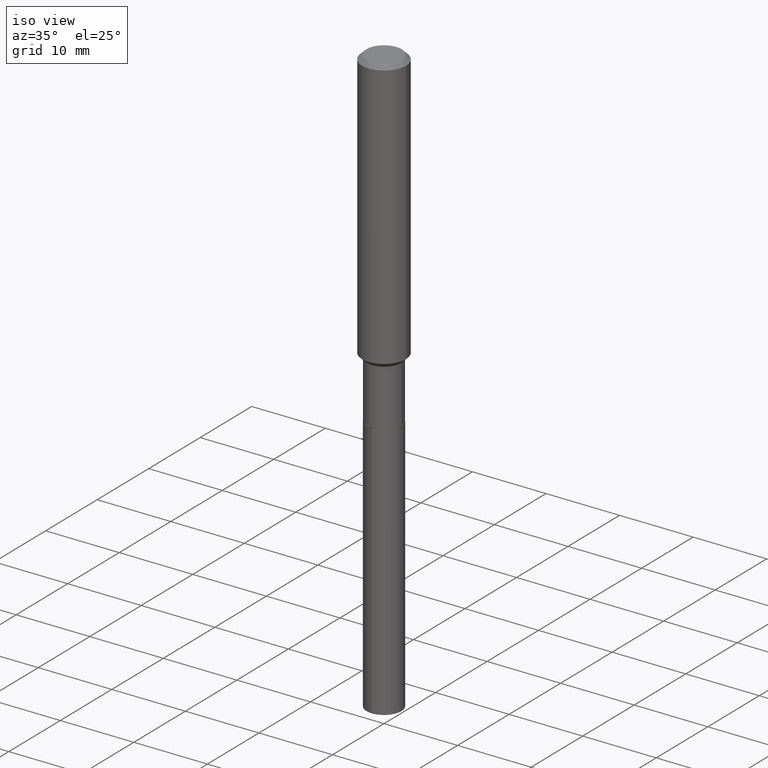
[diagram: clean part render]
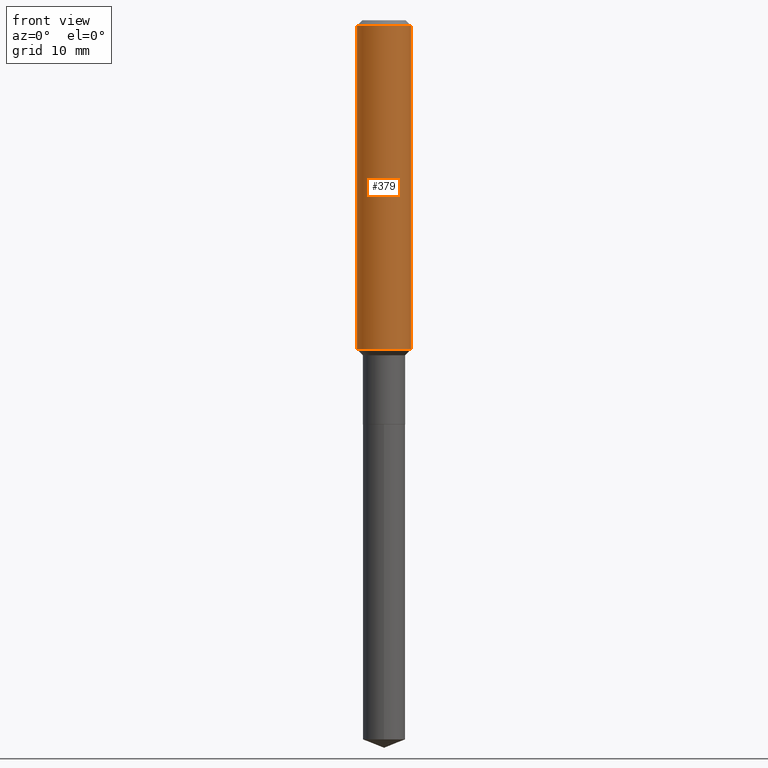
[diagram: tour spotlight — one face highlighted and labeled with its STEP entity id]
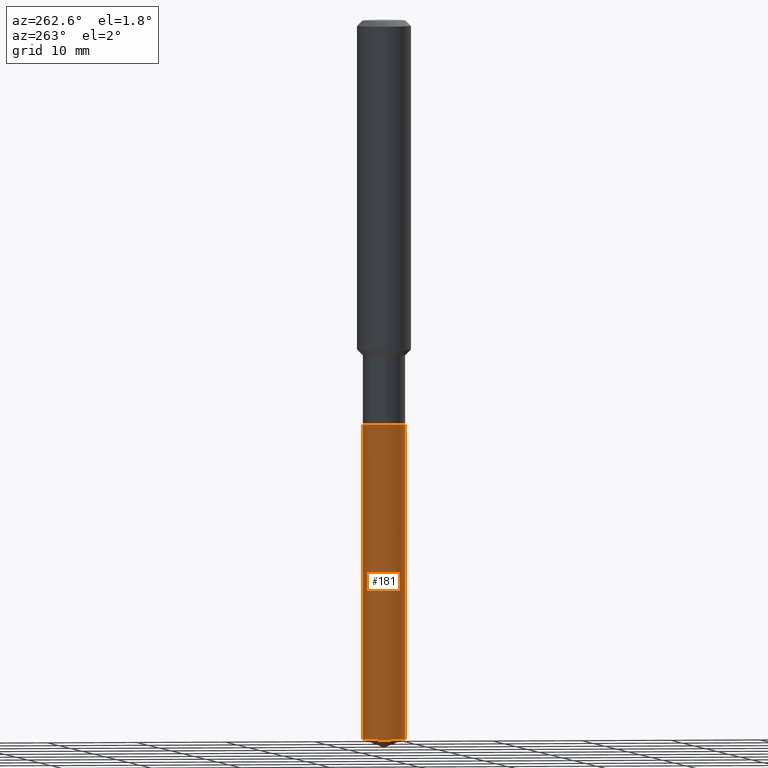
[diagram: tour spotlight — one face highlighted and labeled with its STEP entity id]
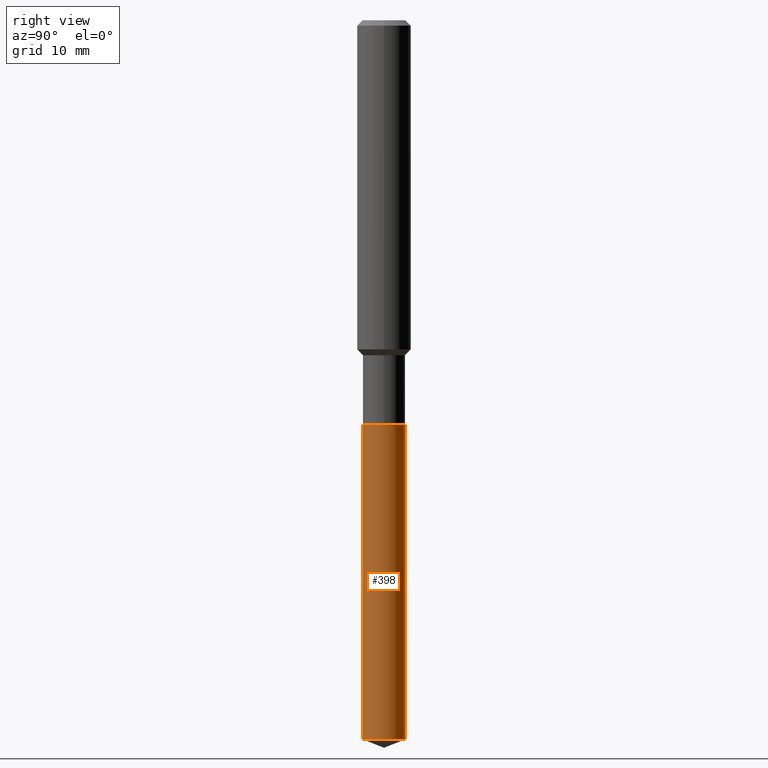
[diagram: tour spotlight — one face highlighted and labeled with its STEP entity id]
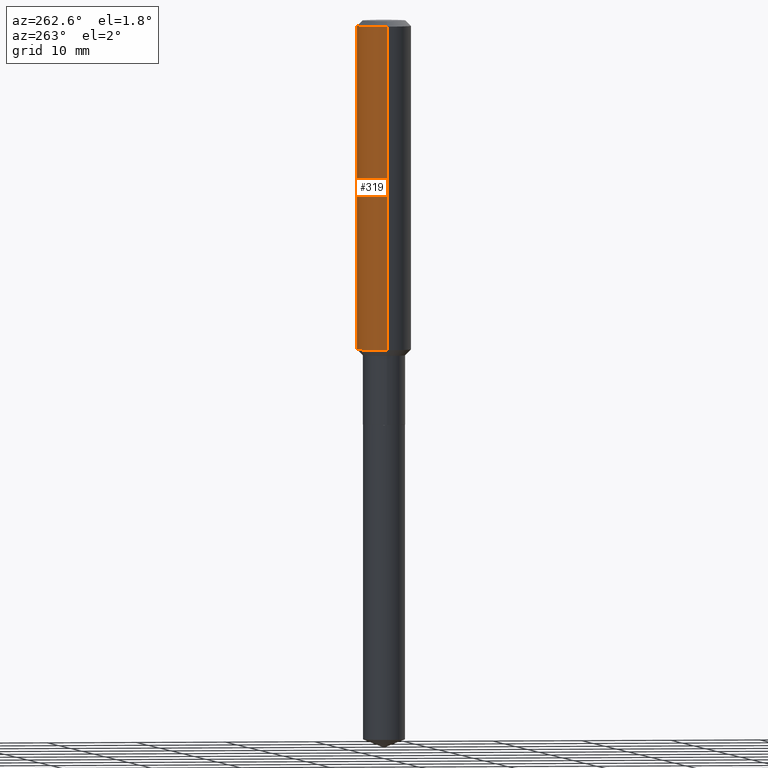
[diagram: tour spotlight — one face highlighted and labeled with its STEP entity id]
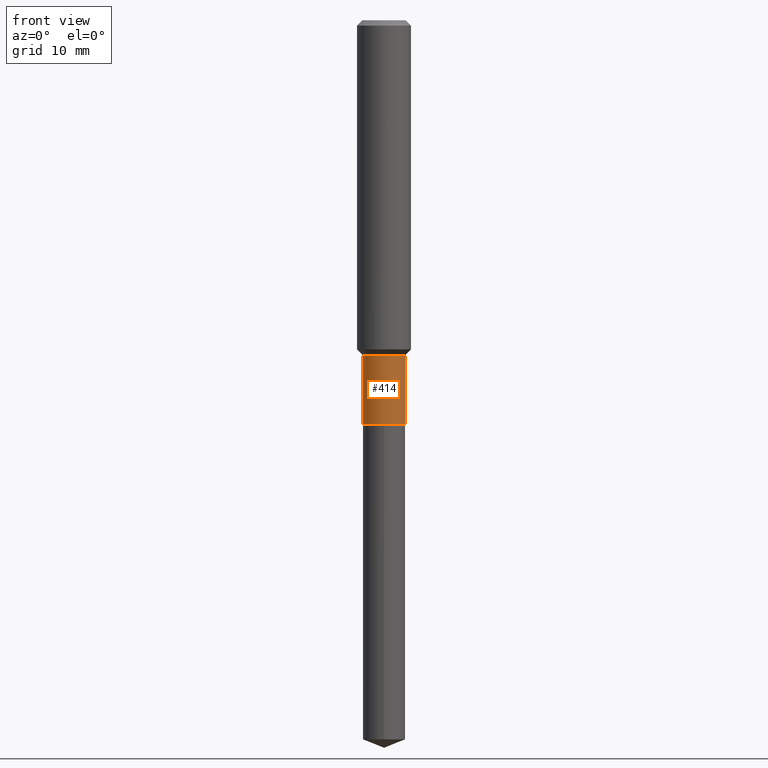
[diagram: tour spotlight — one face highlighted and labeled with its STEP entity id]
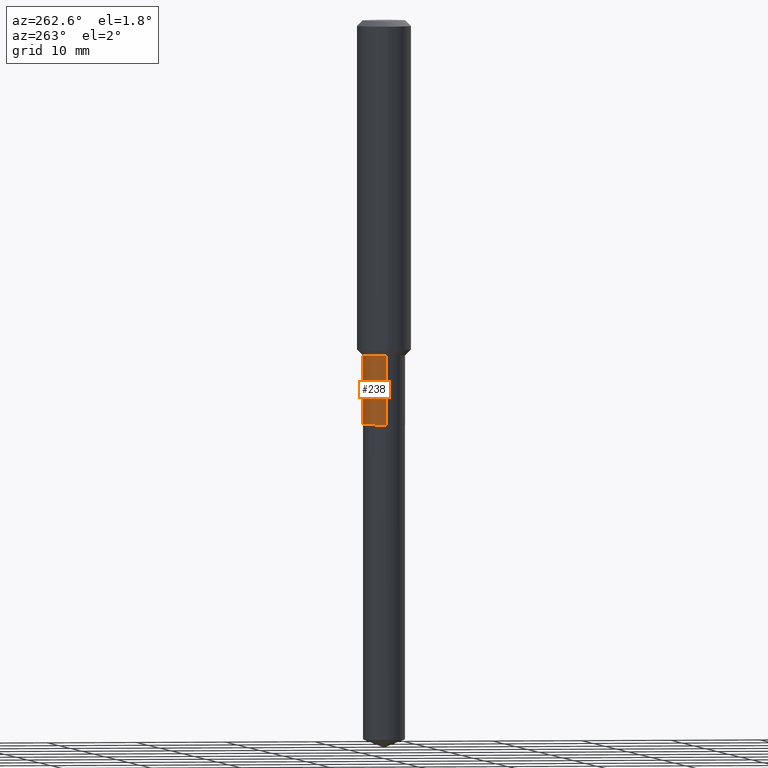
[diagram: tour spotlight — one face highlighted and labeled with its STEP entity id]
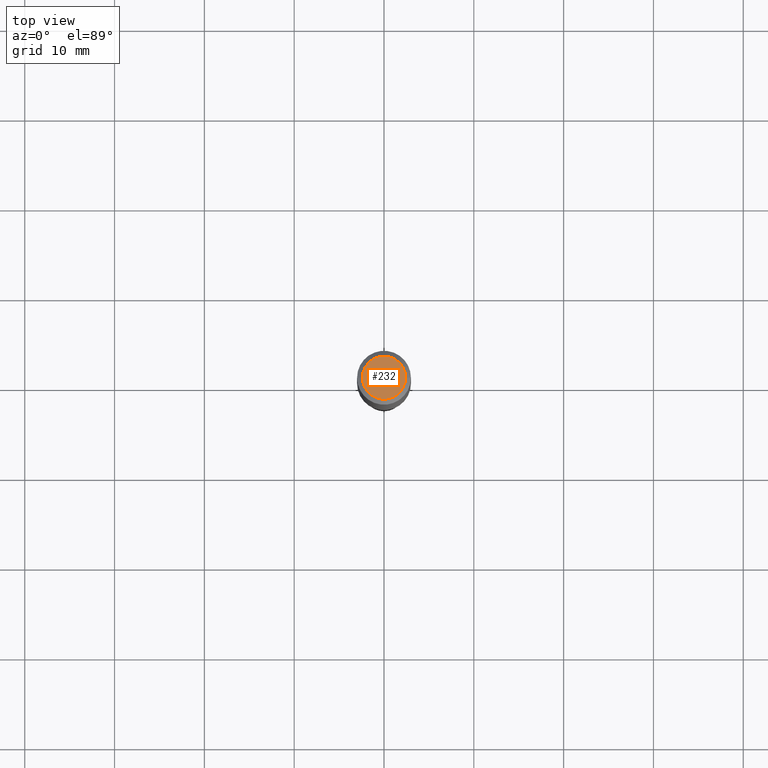
[diagram: tour spotlight — one face highlighted and labeled with its STEP entity id]
A machine part: a face-by-face anatomy tour. The part has 17 B-rep faces; the first image is the clean iso view, then the 7 largest visible faces are spotlighted one at a time (largest first), each with its STEP entity span.

Face 1 — front view, entity #379. In plain terms, the highlighted cylindrical surface (edge-blend (fillet) strip) has radius 2.9997 mm, axis along (-0, 0, 1).
Definition (entity closure, byte-faithful):
#12 = CIRCLE ( 'NONE', #258, 0.1181000000000001632 ) ;
#14 = EDGE_CURVE ( 'NONE', #247, #245, #276, .T. ) ;
#18 = CARTESIAN_POINT ( 'NONE',  ( 0.000000000000000000, 0.000000000000000000, 0.000000000000000000 ) ) ;
#19 = ORIENTED_EDGE ( 'NONE', *, *, #466, .F. ) ;
#29 = VECTOR ( 'NONE', #478, 39.37007874015748143 ) ;
#35 = EDGE_CURVE ( 'NONE', #395, #247, #12, .T. ) ;
#50 = EDGE_CURVE ( 'NONE', #395, #297, #104, .T. ) ;
#70 = CARTESIAN_POINT ( 'NONE',  ( -0.1181000000000000799, 8.391509709326788873E-16, -5.809262341591047988E-30 ) ) ;
#88 = ORIENTED_EDGE ( 'NONE', *, *, #50, .F. ) ;
#102 = DIRECTION ( 'NONE',  ( 1.000000000000000000, -6.982962677686263555E-15, 0.000000000000000000 ) ) ;
#104 = LINE ( 'NONE', #70, #164 ) ;
#121 = CYLINDRICAL_SURFACE ( 'NONE', #345, 0.1181000000000000799 ) ;
#159 = CARTESIAN_POINT ( 'NONE',  ( 0.1180999999999999966, -9.071566814582237199E-16, -0.02362000000000014088 ) ) ;
#162 = DIRECTION ( 'NONE',  ( -2.445468806185136597E-29, 3.491481338843145583E-15, 1.000000000000000000 ) ) ;
#163 = DIRECTION ( 'NONE',  ( -2.445468806185136877E-29, 3.491481338843145188E-15, 1.000000000000000000 ) ) ;
#164 = VECTOR ( 'NONE', #163, 39.37007874015748143 ) ;
#165 = ORIENTED_EDGE ( 'NONE', *, *, #14, .T. ) ;
#188 = CARTESIAN_POINT ( 'NONE',  ( -0.1181000000000001632, -4.198009156616327782E-15, -1.442700000000000538 ) ) ;
#192 = CARTESIAN_POINT ( 'NONE',  ( -0.1180999999999999966, -1.720663487453561930E-15, -0.02362000000000014088 ) ) ;
#204 = EDGE_LOOP ( 'NONE', ( #88, #310, #165, #19 ) ) ;
#227 = DIRECTION ( 'NONE',  ( 1.000000000000000000, -6.982962677686266711E-15, 4.876176775795936353E-29 ) ) ;
#245 = VERTEX_POINT ( 'NONE', #159 ) ;
#247 = VERTEX_POINT ( 'NONE', #423 ) ;
#258 = AXIS2_PLACEMENT_3D ( 'NONE', #282, #474, #102 ) ;
#270 = DIRECTION ( 'NONE',  ( -2.445468806185136597E-29, 3.491481338843145583E-15, 1.000000000000000000 ) ) ;
#276 = LINE ( 'NONE', #441, #29 ) ;
#282 = CARTESIAN_POINT ( 'NONE',  ( 3.528077846683297760E-29, -5.037160127549007557E-15, -1.442700000000000538 ) ) ;
#297 = VERTEX_POINT ( 'NONE', #192 ) ;
#310 = ORIENTED_EDGE ( 'NONE', *, *, #35, .T. ) ;
#345 = AXIS2_PLACEMENT_3D ( 'NONE', #18, #270, #227 ) ;
#353 = AXIS2_PLACEMENT_3D ( 'NONE', #436, #162, #476 ) ;
#378 = FACE_OUTER_BOUND ( 'NONE', #204, .T. ) ;
#379 = ADVANCED_FACE ( 'NONE', ( #378 ), #121, .T. ) ;
#395 = VERTEX_POINT ( 'NONE', #188 ) ;
#423 = CARTESIAN_POINT ( 'NONE',  ( 0.1181000000000001632, -5.861848019783756608E-15, -1.442700000000000538 ) ) ;
#436 = CARTESIAN_POINT ( 'NONE',  ( 5.776197320209327532E-31, -8.246878922347559293E-17, -0.02362000000000014088 ) ) ;
#441 = CARTESIAN_POINT ( 'NONE',  ( 0.1181000000000000799, -8.246878922347486570E-16, 5.758764772215004644E-30 ) ) ;
#466 = EDGE_CURVE ( 'NONE', #297, #245, #479, .T. ) ;
#474 = DIRECTION ( 'NONE',  ( -2.445468806185136597E-29, 3.491481338843145583E-15, 1.000000000000000000 ) ) ;
#476 = DIRECTION ( 'NONE',  ( 1.000000000000000000, -6.982962677686266711E-15, 0.000000000000000000 ) ) ;
#478 = DIRECTION ( 'NONE',  ( -2.445468806185136877E-29, 3.491481338843145188E-15, 1.000000000000000000 ) ) ;
#479 = CIRCLE ( 'NONE', #353, 0.1180999999999999966 ) ;

Face 2 — auxiliary view, entity #181. In plain terms, the highlighted cylindrical surface (edge-blend (fillet) strip) has radius 2.3495 mm, axis along (-0, 0, 1).
Definition (entity closure, byte-faithful):
#9 = VERTEX_POINT ( 'NONE', #168 ) ;
#26 = ORIENTED_EDGE ( 'NONE', *, *, #195, .F. ) ;
#30 = ORIENTED_EDGE ( 'NONE', *, *, #150, .T. ) ;
#34 = DIRECTION ( 'NONE',  ( -6.982962677686265922E-15, -1.000000000000000000, 2.953349182339743999E-15 ) ) ;
#49 = ORIENTED_EDGE ( 'NONE', *, *, #486, .F. ) ;
#90 = ORIENTED_EDGE ( 'NONE', *, *, #332, .T. ) ;
#91 = AXIS2_PLACEMENT_3D ( 'NONE', #483, #413, #490 ) ;
#107 = CARTESIAN_POINT ( 'NONE',  ( -6.459240476859363031E-16, -0.09250000000000618838, -1.771700000000000053 ) ) ;
#113 = DIRECTION ( 'NONE',  ( -2.445498752953222356E-29, 3.491438453366782686E-15, 1.000000000000000000 ) ) ;
#120 = VERTEX_POINT ( 'NONE', #107 ) ;
#145 = CARTESIAN_POINT ( 'NONE',  ( 7.709536515616339787E-29, -1.100705664617363653E-14, -3.152563281005618112 ) ) ;
#147 = CYLINDRICAL_SURFACE ( 'NONE', #387, 0.09249999999999999889 ) ;
#150 = EDGE_CURVE ( 'NONE', #342, #191, #220, .T. ) ;
#168 = CARTESIAN_POINT ( 'NONE',  ( 6.572520305781699724E-16, 0.09249999999999382327, -1.771700000000000719 ) ) ;
#171 = CIRCLE ( 'NONE', #91, 0.09249999999999999889 ) ;
#181 = ADVANCED_FACE ( 'NONE', ( #449 ), #147, .T. ) ;
#190 = LINE ( 'NONE', #268, #419 ) ;
#191 = VERTEX_POINT ( 'NONE', #371 ) ;
#195 = EDGE_CURVE ( 'NONE', #9, #120, #171, .T. ) ;
#220 = CIRCLE ( 'NONE', #446, 0.09249999999999999889 ) ;
#246 = CARTESIAN_POINT ( 'NONE',  ( 6.572520305781358542E-16, 0.09249999999999382327, -1.771700000000000719 ) ) ;
#250 = VECTOR ( 'NONE', #470, 39.37007874015748143 ) ;
#268 = CARTESIAN_POINT ( 'NONE',  ( -6.459240476859363031E-16, -0.09250000000000618838, -1.771700000000000053 ) ) ;
#323 = DIRECTION ( 'NONE',  ( -2.445498752953222356E-29, 3.491438453366782686E-15, 1.000000000000000000 ) ) ;
#332 = EDGE_CURVE ( 'NONE', #191, #120, #190, .T. ) ;
#342 = VERTEX_POINT ( 'NONE', #375 ) ;
#371 = CARTESIAN_POINT ( 'NONE',  ( -6.459240476859022835E-16, -0.09250000000001096234, -3.152563281005617224 ) ) ;
#375 = CARTESIAN_POINT ( 'NONE',  ( 6.572520305781693808E-16, 0.09249999999998897993, -3.152563281005618556 ) ) ;
#380 = EDGE_LOOP ( 'NONE', ( #49, #30, #90, #26 ) ) ;
#387 = AXIS2_PLACEMENT_3D ( 'NONE', #457, #113, #34 ) ;
#396 = LINE ( 'NONE', #246, #250 ) ;
#405 = DIRECTION ( 'NONE',  ( -6.982962677686265922E-15, -1.000000000000000000, 5.906698364679487997E-15 ) ) ;
#413 = DIRECTION ( 'NONE',  ( -2.445498752953222356E-29, 3.491438453366782686E-15, 1.000000000000000000 ) ) ;
#419 = VECTOR ( 'NONE', #459, 39.37007874015748143 ) ;
#446 = AXIS2_PLACEMENT_3D ( 'NONE', #145, #323, #405 ) ;
#449 = FACE_OUTER_BOUND ( 'NONE', #380, .T. ) ;
#457 = CARTESIAN_POINT ( 'NONE',  ( 4.332637083918206987E-29, -6.185857488028401870E-15, -1.771700000000000497 ) ) ;
#459 = DIRECTION ( 'NONE',  ( -2.445498752953222356E-29, 3.491438453366782686E-15, 1.000000000000000000 ) ) ;
#470 = DIRECTION ( 'NONE',  ( -2.445498752953222356E-29, 3.491438453366782686E-15, 1.000000000000000000 ) ) ;
#483 = CARTESIAN_POINT ( 'NONE',  ( 4.332637083918206987E-29, -6.185857488028401870E-15, -1.771700000000000497 ) ) ;
#486 = EDGE_CURVE ( 'NONE', #342, #9, #396, .T. ) ;
#490 = DIRECTION ( 'NONE',  ( -6.982962677686265922E-15, -1.000000000000000000, 2.953349182339743999E-15 ) ) ;

Face 3 — right view, entity #398. In plain terms, the highlighted cylindrical surface (edge-blend (fillet) strip) has radius 2.3495 mm, axis along (-0, 0, 1).
Definition (entity closure, byte-faithful):
#8 = CYLINDRICAL_SURFACE ( 'NONE', #447, 0.09249999999999999889 ) ;
#9 = VERTEX_POINT ( 'NONE', #168 ) ;
#23 = AXIS2_PLACEMENT_3D ( 'NONE', #299, #149, #186 ) ;
#32 = CARTESIAN_POINT ( 'NONE',  ( 4.332637083918206987E-29, -6.185857488028401870E-15, -1.771700000000000497 ) ) ;
#37 = DIRECTION ( 'NONE',  ( -6.982962677686265922E-15, -1.000000000000000000, 2.953349182339743999E-15 ) ) ;
#43 = DIRECTION ( 'NONE',  ( -6.982962677686265922E-15, -1.000000000000000000, 2.953349182339743999E-15 ) ) ;
#61 = CIRCLE ( 'NONE', #409, 0.09249999999999999889 ) ;
#71 = EDGE_CURVE ( 'NONE', #120, #9, #61, .T. ) ;
#107 = CARTESIAN_POINT ( 'NONE',  ( -6.459240476859363031E-16, -0.09250000000000618838, -1.771700000000000053 ) ) ;
#120 = VERTEX_POINT ( 'NONE', #107 ) ;
#122 = CARTESIAN_POINT ( 'NONE',  ( 4.332637083918206987E-29, -6.185857488028401870E-15, -1.771700000000000497 ) ) ;
#149 = DIRECTION ( 'NONE',  ( -2.445498752953222356E-29, 3.491438453366782686E-15, 1.000000000000000000 ) ) ;
#168 = CARTESIAN_POINT ( 'NONE',  ( 6.572520305781699724E-16, 0.09249999999999382327, -1.771700000000000719 ) ) ;
#185 = CIRCLE ( 'NONE', #23, 0.09249999999999999889 ) ;
#186 = DIRECTION ( 'NONE',  ( -6.982962677686265922E-15, -1.000000000000000000, 5.906698364679487997E-15 ) ) ;
#190 = LINE ( 'NONE', #268, #419 ) ;
#191 = VERTEX_POINT ( 'NONE', #371 ) ;
#193 = ORIENTED_EDGE ( 'NONE', *, *, #253, .T. ) ;
#242 = EDGE_LOOP ( 'NONE', ( #193, #390, #425, #393 ) ) ;
#246 = CARTESIAN_POINT ( 'NONE',  ( 6.572520305781358542E-16, 0.09249999999999382327, -1.771700000000000719 ) ) ;
#250 = VECTOR ( 'NONE', #470, 39.37007874015748143 ) ;
#253 = EDGE_CURVE ( 'NONE', #191, #342, #185, .T. ) ;
#268 = CARTESIAN_POINT ( 'NONE',  ( -6.459240476859363031E-16, -0.09250000000000618838, -1.771700000000000053 ) ) ;
#299 = CARTESIAN_POINT ( 'NONE',  ( 7.709536515616339787E-29, -1.100705664617363653E-14, -3.152563281005618112 ) ) ;
#332 = EDGE_CURVE ( 'NONE', #191, #120, #190, .T. ) ;
#342 = VERTEX_POINT ( 'NONE', #375 ) ;
#371 = CARTESIAN_POINT ( 'NONE',  ( -6.459240476859022835E-16, -0.09250000000001096234, -3.152563281005617224 ) ) ;
#375 = CARTESIAN_POINT ( 'NONE',  ( 6.572520305781693808E-16, 0.09249999999998897993, -3.152563281005618556 ) ) ;
#388 = FACE_OUTER_BOUND ( 'NONE', #242, .T. ) ;
#390 = ORIENTED_EDGE ( 'NONE', *, *, #486, .T. ) ;
#393 = ORIENTED_EDGE ( 'NONE', *, *, #332, .F. ) ;
#396 = LINE ( 'NONE', #246, #250 ) ;
#398 = ADVANCED_FACE ( 'NONE', ( #388 ), #8, .T. ) ;
#409 = AXIS2_PLACEMENT_3D ( 'NONE', #32, #412, #37 ) ;
#412 = DIRECTION ( 'NONE',  ( -2.445498752953222356E-29, 3.491438453366782686E-15, 1.000000000000000000 ) ) ;
#419 = VECTOR ( 'NONE', #459, 39.37007874015748143 ) ;
#425 = ORIENTED_EDGE ( 'NONE', *, *, #71, .F. ) ;
#428 = DIRECTION ( 'NONE',  ( -2.445498752953222356E-29, 3.491438453366782686E-15, 1.000000000000000000 ) ) ;
#447 = AXIS2_PLACEMENT_3D ( 'NONE', #122, #428, #43 ) ;
#459 = DIRECTION ( 'NONE',  ( -2.445498752953222356E-29, 3.491438453366782686E-15, 1.000000000000000000 ) ) ;
#470 = DIRECTION ( 'NONE',  ( -2.445498752953222356E-29, 3.491438453366782686E-15, 1.000000000000000000 ) ) ;
#486 = EDGE_CURVE ( 'NONE', #342, #9, #396, .T. ) ;

Face 4 — auxiliary view, entity #319. In plain terms, the highlighted cylindrical surface (edge-blend (fillet) strip) has radius 2.9997 mm, axis along (-0, 0, 1).
Definition (entity closure, byte-faithful):
#14 = EDGE_CURVE ( 'NONE', #247, #245, #276, .T. ) ;
#29 = VECTOR ( 'NONE', #478, 39.37007874015748143 ) ;
#50 = EDGE_CURVE ( 'NONE', #395, #297, #104, .T. ) ;
#54 = CYLINDRICAL_SURFACE ( 'NONE', #77, 0.1181000000000000799 ) ;
#70 = CARTESIAN_POINT ( 'NONE',  ( -0.1181000000000000799, 8.391509709326788873E-16, -5.809262341591047988E-30 ) ) ;
#72 = DIRECTION ( 'NONE',  ( 1.000000000000000000, -6.982962677686266711E-15, 0.000000000000000000 ) ) ;
#77 = AXIS2_PLACEMENT_3D ( 'NONE', #309, #458, #119 ) ;
#78 = EDGE_CURVE ( 'NONE', #245, #297, #155, .T. ) ;
#79 = DIRECTION ( 'NONE',  ( -2.445468806185136597E-29, 3.491481338843145583E-15, 1.000000000000000000 ) ) ;
#104 = LINE ( 'NONE', #70, #164 ) ;
#119 = DIRECTION ( 'NONE',  ( 1.000000000000000000, -6.982962677686266711E-15, 4.876176775795936353E-29 ) ) ;
#132 = AXIS2_PLACEMENT_3D ( 'NONE', #177, #180, #72 ) ;
#155 = CIRCLE ( 'NONE', #132, 0.1180999999999999966 ) ;
#159 = CARTESIAN_POINT ( 'NONE',  ( 0.1180999999999999966, -9.071566814582237199E-16, -0.02362000000000014088 ) ) ;
#163 = DIRECTION ( 'NONE',  ( -2.445468806185136877E-29, 3.491481338843145188E-15, 1.000000000000000000 ) ) ;
#164 = VECTOR ( 'NONE', #163, 39.37007874015748143 ) ;
#177 = CARTESIAN_POINT ( 'NONE',  ( 5.776197320209327532E-31, -8.246878922347559293E-17, -0.02362000000000014088 ) ) ;
#180 = DIRECTION ( 'NONE',  ( -2.445468806185136597E-29, 3.491481338843145583E-15, 1.000000000000000000 ) ) ;
#187 = EDGE_CURVE ( 'NONE', #247, #395, #226, .T. ) ;
#188 = CARTESIAN_POINT ( 'NONE',  ( -0.1181000000000001632, -4.198009156616327782E-15, -1.442700000000000538 ) ) ;
#192 = CARTESIAN_POINT ( 'NONE',  ( -0.1180999999999999966, -1.720663487453561930E-15, -0.02362000000000014088 ) ) ;
#198 = ORIENTED_EDGE ( 'NONE', *, *, #50, .T. ) ;
#226 = CIRCLE ( 'NONE', #386, 0.1181000000000001632 ) ;
#245 = VERTEX_POINT ( 'NONE', #159 ) ;
#247 = VERTEX_POINT ( 'NONE', #423 ) ;
#263 = DIRECTION ( 'NONE',  ( 1.000000000000000000, -6.982962677686263555E-15, 0.000000000000000000 ) ) ;
#269 = EDGE_LOOP ( 'NONE', ( #279, #198, #460, #320 ) ) ;
#276 = LINE ( 'NONE', #441, #29 ) ;
#279 = ORIENTED_EDGE ( 'NONE', *, *, #187, .T. ) ;
#297 = VERTEX_POINT ( 'NONE', #192 ) ;
#309 = CARTESIAN_POINT ( 'NONE',  ( 0.000000000000000000, 0.000000000000000000, 0.000000000000000000 ) ) ;
#319 = ADVANCED_FACE ( 'NONE', ( #416 ), #54, .T. ) ;
#320 = ORIENTED_EDGE ( 'NONE', *, *, #14, .F. ) ;
#386 = AXIS2_PLACEMENT_3D ( 'NONE', #451, #79, #263 ) ;
#395 = VERTEX_POINT ( 'NONE', #188 ) ;
#416 = FACE_OUTER_BOUND ( 'NONE', #269, .T. ) ;
#423 = CARTESIAN_POINT ( 'NONE',  ( 0.1181000000000001632, -5.861848019783756608E-15, -1.442700000000000538 ) ) ;
#441 = CARTESIAN_POINT ( 'NONE',  ( 0.1181000000000000799, -8.246878922347486570E-16, 5.758764772215004644E-30 ) ) ;
#451 = CARTESIAN_POINT ( 'NONE',  ( 3.528077846683297760E-29, -5.037160127549007557E-15, -1.442700000000000538 ) ) ;
#458 = DIRECTION ( 'NONE',  ( -2.445468806185136597E-29, 3.491481338843145583E-15, 1.000000000000000000 ) ) ;
#460 = ORIENTED_EDGE ( 'NONE', *, *, #78, .F. ) ;
#478 = DIRECTION ( 'NONE',  ( -2.445468806185136877E-29, 3.491481338843145188E-15, 1.000000000000000000 ) ) ;

Face 5 — front view, entity #414. In plain terms, the highlighted cylindrical surface (edge-blend (fillet) strip) has radius 2.3495 mm, axis along (-0, 0, 1).
Definition (entity closure, byte-faithful):
#4 = VECTOR ( 'NONE', #142, 39.37007874015748143 ) ;
#11 = VERTEX_POINT ( 'NONE', #357 ) ;
#16 = ORIENTED_EDGE ( 'NONE', *, *, #472, .F. ) ;
#42 = CARTESIAN_POINT ( 'NONE',  ( -0.09249999999999998501, 6.572520305780925654E-16, -4.550014958485786769E-30 ) ) ;
#52 = VECTOR ( 'NONE', #295, 39.37007874015748143 ) ;
#60 = ORIENTED_EDGE ( 'NONE', *, *, #92, .F. ) ;
#63 = DIRECTION ( 'NONE',  ( -2.445468806185136597E-29, 3.491481338843145583E-15, 1.000000000000000000 ) ) ;
#75 = DIRECTION ( 'NONE',  ( 1.000000000000000000, -6.982962677686265133E-15, 0.000000000000000000 ) ) ;
#83 = AXIS2_PLACEMENT_3D ( 'NONE', #392, #167, #312 ) ;
#92 = EDGE_CURVE ( 'NONE', #417, #469, #217, .T. ) ;
#105 = EDGE_CURVE ( 'NONE', #417, #346, #201, .T. ) ;
#115 = ORIENTED_EDGE ( 'NONE', *, *, #105, .T. ) ;
#117 = EDGE_LOOP ( 'NONE', ( #60, #115, #304, #16 ) ) ;
#142 = DIRECTION ( 'NONE',  ( -2.445468806185136877E-29, 3.491481338843145188E-15, 1.000000000000000000 ) ) ;
#167 = DIRECTION ( 'NONE',  ( -2.445468806185136597E-29, 3.491481338843145583E-15, 1.000000000000000000 ) ) ;
#172 = CIRCLE ( 'NONE', #83, 0.09249999999999997113 ) ;
#184 = CARTESIAN_POINT ( 'NONE',  ( 4.331414349515115307E-29, -6.184111747358981944E-15, -1.771200000000000552 ) ) ;
#201 = CIRCLE ( 'NONE', #302, 0.09249999999999999889 ) ;
#209 = CARTESIAN_POINT ( 'NONE',  ( -0.09249999999999999889, -4.998074868013093170E-15, -1.771200000000000552 ) ) ;
#217 = LINE ( 'NONE', #42, #52 ) ;
#218 = EDGE_CURVE ( 'NONE', #346, #11, #488, .T. ) ;
#244 = FACE_OUTER_BOUND ( 'NONE', #117, .T. ) ;
#283 = DIRECTION ( 'NONE',  ( 1.000000000000000000, -6.982962677686266711E-15, 4.876176775795935232E-29 ) ) ;
#289 = DIRECTION ( 'NONE',  ( -2.445468806185136597E-29, 3.491481338843145583E-15, 1.000000000000000000 ) ) ;
#293 = CARTESIAN_POINT ( 'NONE',  ( 0.09249999999999998501, -6.459240476859795918E-16, 4.510463517611239347E-30 ) ) ;
#295 = DIRECTION ( 'NONE',  ( -2.445468806185136877E-29, 3.491481338843145188E-15, 1.000000000000000000 ) ) ;
#302 = AXIS2_PLACEMENT_3D ( 'NONE', #184, #289, #75 ) ;
#304 = ORIENTED_EDGE ( 'NONE', *, *, #218, .T. ) ;
#312 = DIRECTION ( 'NONE',  ( 1.000000000000000000, -6.982962677686266711E-15, 0.000000000000000000 ) ) ;
#321 = CYLINDRICAL_SURFACE ( 'NONE', #377, 0.09249999999999998501 ) ;
#346 = VERTEX_POINT ( 'NONE', #468 ) ;
#357 = CARTESIAN_POINT ( 'NONE',  ( 0.09249999999999997113, -5.772466097509371681E-15, -1.468300000000000605 ) ) ;
#358 = CARTESIAN_POINT ( 'NONE',  ( -0.09249999999999997113, -4.998074868013093170E-15, -1.468300000000000605 ) ) ;
#377 = AXIS2_PLACEMENT_3D ( 'NONE', #440, #63, #283 ) ;
#392 = CARTESIAN_POINT ( 'NONE',  ( 3.590681848121637088E-29, -5.126542049823392484E-15, -1.468300000000000605 ) ) ;
#414 = ADVANCED_FACE ( 'NONE', ( #244 ), #321, .T. ) ;
#417 = VERTEX_POINT ( 'NONE', #209 ) ;
#440 = CARTESIAN_POINT ( 'NONE',  ( 0.000000000000000000, 0.000000000000000000, 0.000000000000000000 ) ) ;
#468 = CARTESIAN_POINT ( 'NONE',  ( 0.09249999999999999889, -6.830035795044961142E-15, -1.771200000000000552 ) ) ;
#469 = VERTEX_POINT ( 'NONE', #358 ) ;
#472 = EDGE_CURVE ( 'NONE', #469, #11, #172, .T. ) ;
#488 = LINE ( 'NONE', #293, #4 ) ;

Face 6 — auxiliary view, entity #238. In plain terms, the highlighted cylindrical surface (edge-blend (fillet) strip) has radius 2.3495 mm, axis along (-0, 0, 1).
Definition (entity closure, byte-faithful):
#4 = VECTOR ( 'NONE', #142, 39.37007874015748143 ) ;
#10 = DIRECTION ( 'NONE',  ( 1.000000000000000000, -6.982962677686266711E-15, 4.876176775795935232E-29 ) ) ;
#11 = VERTEX_POINT ( 'NONE', #357 ) ;
#13 = CIRCLE ( 'NONE', #98, 0.09249999999999999889 ) ;
#42 = CARTESIAN_POINT ( 'NONE',  ( -0.09249999999999998501, 6.572520305780925654E-16, -4.550014958485786769E-30 ) ) ;
#52 = VECTOR ( 'NONE', #295, 39.37007874015748143 ) ;
#64 = ORIENTED_EDGE ( 'NONE', *, *, #433, .T. ) ;
#65 = DIRECTION ( 'NONE',  ( -2.445468806185136597E-29, 3.491481338843145583E-15, 1.000000000000000000 ) ) ;
#92 = EDGE_CURVE ( 'NONE', #417, #469, #217, .T. ) ;
#98 = AXIS2_PLACEMENT_3D ( 'NONE', #240, #65, #206 ) ;
#110 = CARTESIAN_POINT ( 'NONE',  ( 3.590681848121637088E-29, -5.126542049823392484E-15, -1.468300000000000605 ) ) ;
#123 = CIRCLE ( 'NONE', #401, 0.09249999999999997113 ) ;
#142 = DIRECTION ( 'NONE',  ( -2.445468806185136877E-29, 3.491481338843145188E-15, 1.000000000000000000 ) ) ;
#206 = DIRECTION ( 'NONE',  ( 1.000000000000000000, -6.982962677686265133E-15, 0.000000000000000000 ) ) ;
#209 = CARTESIAN_POINT ( 'NONE',  ( -0.09249999999999999889, -4.998074868013093170E-15, -1.771200000000000552 ) ) ;
#217 = LINE ( 'NONE', #42, #52 ) ;
#218 = EDGE_CURVE ( 'NONE', #346, #11, #488, .T. ) ;
#224 = EDGE_CURVE ( 'NONE', #11, #469, #123, .T. ) ;
#238 = ADVANCED_FACE ( 'NONE', ( #465 ), #264, .T. ) ;
#240 = CARTESIAN_POINT ( 'NONE',  ( 4.331414349515115307E-29, -6.184111747358981944E-15, -1.771200000000000552 ) ) ;
#249 = AXIS2_PLACEMENT_3D ( 'NONE', #382, #341, #10 ) ;
#256 = DIRECTION ( 'NONE',  ( -2.445468806185136597E-29, 3.491481338843145583E-15, 1.000000000000000000 ) ) ;
#264 = CYLINDRICAL_SURFACE ( 'NONE', #249, 0.09249999999999998501 ) ;
#265 = ORIENTED_EDGE ( 'NONE', *, *, #218, .F. ) ;
#267 = ORIENTED_EDGE ( 'NONE', *, *, #92, .T. ) ;
#293 = CARTESIAN_POINT ( 'NONE',  ( 0.09249999999999998501, -6.459240476859795918E-16, 4.510463517611239347E-30 ) ) ;
#295 = DIRECTION ( 'NONE',  ( -2.445468806185136877E-29, 3.491481338843145188E-15, 1.000000000000000000 ) ) ;
#313 = ORIENTED_EDGE ( 'NONE', *, *, #224, .F. ) ;
#341 = DIRECTION ( 'NONE',  ( -2.445468806185136597E-29, 3.491481338843145583E-15, 1.000000000000000000 ) ) ;
#346 = VERTEX_POINT ( 'NONE', #468 ) ;
#357 = CARTESIAN_POINT ( 'NONE',  ( 0.09249999999999997113, -5.772466097509371681E-15, -1.468300000000000605 ) ) ;
#358 = CARTESIAN_POINT ( 'NONE',  ( -0.09249999999999997113, -4.998074868013093170E-15, -1.468300000000000605 ) ) ;
#382 = CARTESIAN_POINT ( 'NONE',  ( 0.000000000000000000, 0.000000000000000000, 0.000000000000000000 ) ) ;
#397 = EDGE_LOOP ( 'NONE', ( #64, #267, #313, #265 ) ) ;
#401 = AXIS2_PLACEMENT_3D ( 'NONE', #110, #256, #453 ) ;
#417 = VERTEX_POINT ( 'NONE', #209 ) ;
#433 = EDGE_CURVE ( 'NONE', #346, #417, #13, .T. ) ;
#453 = DIRECTION ( 'NONE',  ( 1.000000000000000000, -6.982962677686266711E-15, 0.000000000000000000 ) ) ;
#465 = FACE_OUTER_BOUND ( 'NONE', #397, .T. ) ;
#468 = CARTESIAN_POINT ( 'NONE',  ( 0.09249999999999999889, -6.830035795044961142E-15, -1.771200000000000552 ) ) ;
#469 = VERTEX_POINT ( 'NONE', #358 ) ;
#488 = LINE ( 'NONE', #293, #4 ) ;

Face 7 — top view, entity #232. In plain terms, the highlighted planar face has unit normal (0, -0, -1).
Definition (entity closure, byte-faithful):
#40 = PLANE ( 'NONE',  #376 ) ;
#45 = AXIS2_PLACEMENT_3D ( 'NONE', #272, #114, #87 ) ;
#53 = AXIS2_PLACEMENT_3D ( 'NONE', #203, #443, #101 ) ;
#82 = ORIENTED_EDGE ( 'NONE', *, *, #340, .T. ) ;
#87 = DIRECTION ( 'NONE',  ( 1.000000000000000000, -6.982962677686267499E-15, 4.875432709231658792E-29 ) ) ;
#93 = CARTESIAN_POINT ( 'NONE',  ( -0.09447999999999998066, 7.009847083995354710E-16, -1.928573779297727792E-17 ) ) ;
#101 = DIRECTION ( 'NONE',  ( 1.000000000000000000, -6.982962677686267499E-15, 4.875432709231658792E-29 ) ) ;
#114 = DIRECTION ( 'NONE',  ( -2.445468806185136597E-29, 3.491481338843145583E-15, 1.000000000000000000 ) ) ;
#124 = CIRCLE ( 'NONE', #45, 0.09447999999999998066 ) ;
#169 = CARTESIAN_POINT ( 'NONE',  ( 0.09447999999999998066, -7.704367267948738690E-16, -1.928573779296752193E-17 ) ) ;
#183 = FACE_OUTER_BOUND ( 'NONE', #350, .T. ) ;
#203 = CARTESIAN_POINT ( 'NONE',  ( 4.716267017698007905E-46, -6.733579360998555036E-32, -1.928573779297252010E-17 ) ) ;
#232 = ADVANCED_FACE ( 'NONE', ( #183 ), #40, .F. ) ;
#259 = CIRCLE ( 'NONE', #53, 0.09447999999999998066 ) ;
#260 = DIRECTION ( 'NONE',  ( 2.438088387897960049E-29, -3.491481338843145188E-15, -1.000000000000000000 ) ) ;
#271 = VERTEX_POINT ( 'NONE', #93 ) ;
#272 = CARTESIAN_POINT ( 'NONE',  ( 4.716267017698007905E-46, -6.733579360998555036E-32, -1.928573779297252010E-17 ) ) ;
#300 = ORIENTED_EDGE ( 'NONE', *, *, #477, .T. ) ;
#333 = CARTESIAN_POINT ( 'NONE',  ( 2.358133508849003952E-46, -3.366789680499277518E-32, -9.642868896486260050E-18 ) ) ;
#340 = EDGE_CURVE ( 'NONE', #431, #271, #124, .T. ) ;
#350 = EDGE_LOOP ( 'NONE', ( #300, #82 ) ) ;
#376 = AXIS2_PLACEMENT_3D ( 'NONE', #333, #260, #463 ) ;
#431 = VERTEX_POINT ( 'NONE', #169 ) ;
#443 = DIRECTION ( 'NONE',  ( -2.445468806185136597E-29, 3.491481338843145583E-15, 1.000000000000000000 ) ) ;
#463 = DIRECTION ( 'NONE',  ( -1.000000000000000000, 6.982962677686265922E-15, -4.876176775795935793E-29 ) ) ;
#477 = EDGE_CURVE ( 'NONE', #271, #431, #259, .T. ) ;